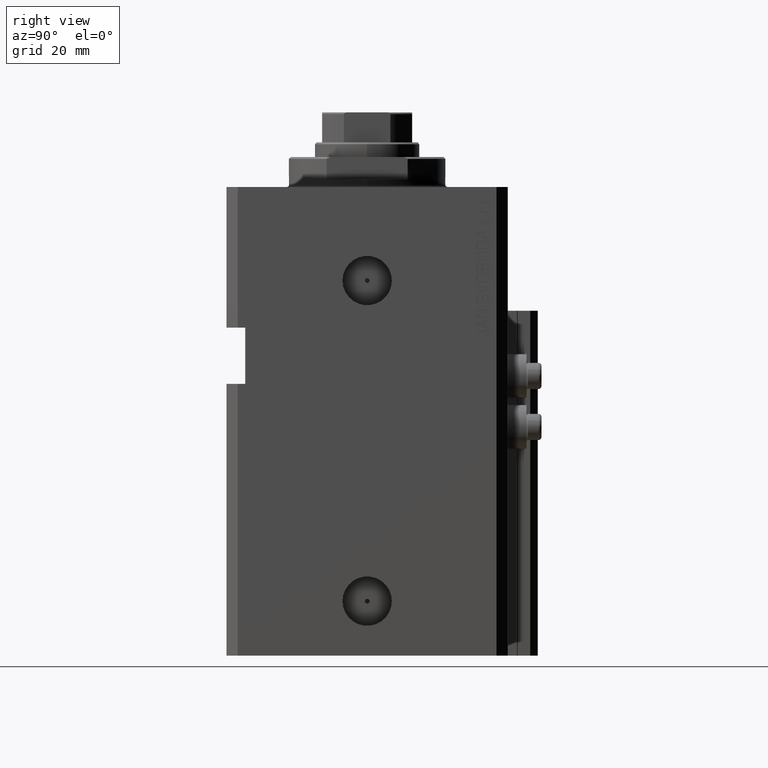
[diagram: clean part render]
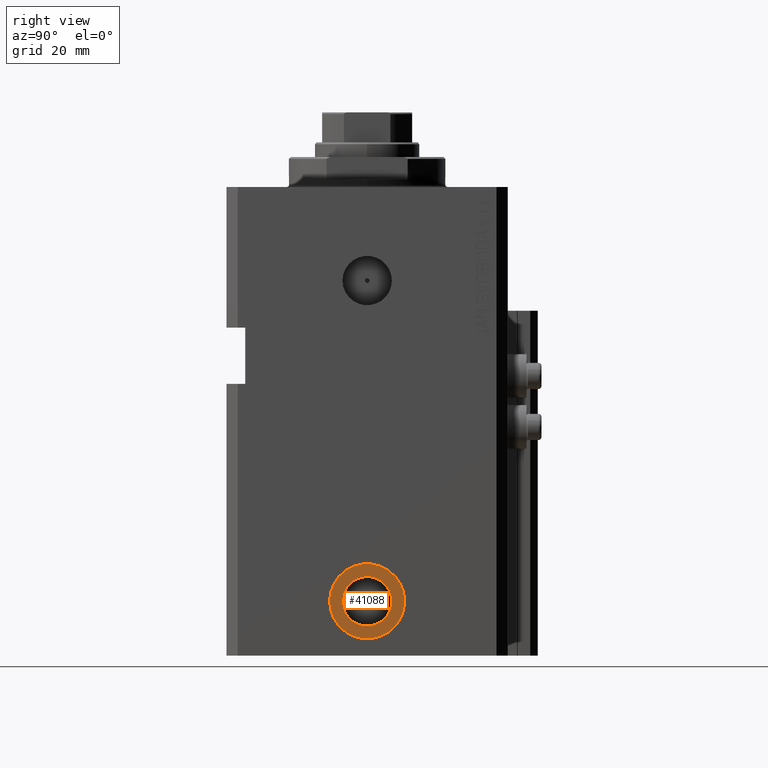
[diagram: same view with one face highlighted and labeled with its STEP entity id]
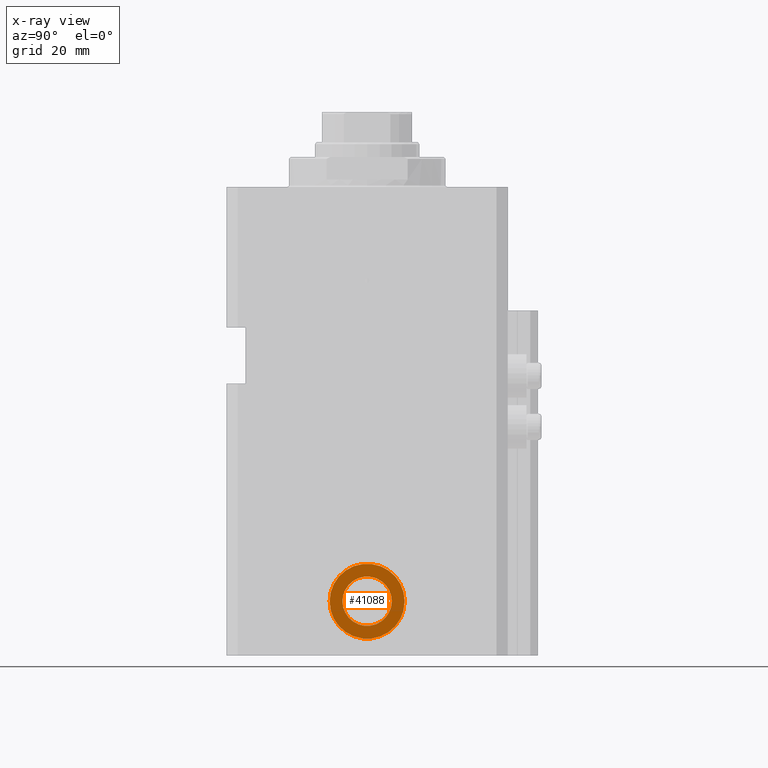
[diagram: x-ray of the same camera — body ghosted, the highlighted face saturated]
A machine part, right view. The second image highlights one B-rep face of the part: STEP entity #41088.
The next image is the same camera in x-ray: the body ghosted, the highlighted face saturated — about 0% of this face is hidden behind the body in this view.
In plain terms, the highlighted planar face has unit normal (1, -0, 0).
Its self-contained STEP definition (entity closure, byte-faithful):
#991 = CARTESIAN_POINT ( 'NONE',  ( 49.90000000000034674, 6.579999999999617266, -110.5000000000000000 ) ) ;
#1330 = ORIENTED_EDGE ( 'NONE', *, *, #39675, .F. ) ;
#1749 = CARTESIAN_POINT ( 'NONE',  ( 49.90000000000025437, -3.707512124632281298E-13, -110.5000000000000000 ) ) ;
#2433 = CARTESIAN_POINT ( 'NONE',  ( 49.90000000000025437, -3.707512124632281298E-13, -110.5000000000000000 ) ) ;
#3461 = EDGE_CURVE ( 'NONE', #6206, #44899, #20139, .T. ) ;
#4501 = ORIENTED_EDGE ( 'NONE', *, *, #26558, .T. ) ;
#6206 = VERTEX_POINT ( 'NONE', #991 ) ;
#7014 = EDGE_LOOP ( 'NONE', ( #44549, #1330 ) ) ;
#7814 = AXIS2_PLACEMENT_3D ( 'NONE', #45252, #26011, #30388 ) ;
#10689 = EDGE_CURVE ( 'NONE', #16764, #34056, #43623, .T. ) ;
#11654 = EDGE_LOOP ( 'NONE', ( #12789, #4501 ) ) ;
#11685 = DIRECTION ( 'NONE',  ( 1.000000000000000000, -1.334402673828349134E-14, 0.000000000000000000 ) ) ;
#12605 = DIRECTION ( 'NONE',  ( 1.000000000000000000, -1.334402673828349134E-14, 0.000000000000000000 ) ) ;
#12789 = ORIENTED_EDGE ( 'NONE', *, *, #10689, .T. ) ;
#13407 = PLANE ( 'NONE',  #34399 ) ;
#13645 = DIRECTION ( 'NONE',  ( 1.334402673828349134E-14, 1.000000000000000000, 0.000000000000000000 ) ) ;
#15327 = CARTESIAN_POINT ( 'NONE',  ( 49.90000000000016911, -6.580000000000357119, -110.5000000000000000 ) ) ;
#16271 = DIRECTION ( 'NONE',  ( 1.370906090437600963E-14, 1.000000000000000000, 0.000000000000000000 ) ) ;
#16764 = VERTEX_POINT ( 'NONE', #44388 ) ;
#17114 = DIRECTION ( 'NONE',  ( 1.318389841742374023E-14, 1.000000000000000000, 0.000000000000000000 ) ) ;
#18082 = AXIS2_PLACEMENT_3D ( 'NONE', #36800, #11685, #40132 ) ;
#20139 = CIRCLE ( 'NONE', #47379, 6.579999999999987637 ) ;
#23078 = CARTESIAN_POINT ( 'NONE',  ( 49.90000000000025437, -3.707512124632281298E-13, -110.5000000000000000 ) ) ;
#24715 = AXIS2_PLACEMENT_3D ( 'NONE', #1749, #31725, #17114 ) ;
#26011 = DIRECTION ( 'NONE',  ( 1.000000000000000000, -1.334402673828349134E-14, 0.000000000000000000 ) ) ;
#26558 = EDGE_CURVE ( 'NONE', #34056, #16764, #45711, .T. ) ;
#27765 = FACE_BOUND ( 'NONE', #7014, .T. ) ;
#28900 = CARTESIAN_POINT ( 'NONE',  ( 49.90000000000012648, -10.00000000000036593, -110.5000000000000000 ) ) ;
#30388 = DIRECTION ( 'NONE',  ( 1.318389841742374023E-14, 1.000000000000000000, 0.000000000000000000 ) ) ;
#31725 = DIRECTION ( 'NONE',  ( 1.000000000000000000, -1.334402673828349134E-14, 0.000000000000000000 ) ) ;
#32643 = DIRECTION ( 'NONE',  ( 1.000000000000000000, -1.334402673828349134E-14, 0.000000000000000000 ) ) ;
#34056 = VERTEX_POINT ( 'NONE', #28900 ) ;
#34399 = AXIS2_PLACEMENT_3D ( 'NONE', #2433, #32643, #13645 ) ;
#36800 = CARTESIAN_POINT ( 'NONE',  ( 49.90000000000025437, -3.707512124632281298E-13, -110.5000000000000000 ) ) ;
#39049 = CIRCLE ( 'NONE', #18082, 6.579999999999987637 ) ;
#39675 = EDGE_CURVE ( 'NONE', #44899, #6206, #39049, .T. ) ;
#40132 = DIRECTION ( 'NONE',  ( 1.370906090437600963E-14, 1.000000000000000000, 0.000000000000000000 ) ) ;
#41088 = ADVANCED_FACE ( 'NONE', ( #27765, #46534 ), #13407, .T. ) ;
#43623 = CIRCLE ( 'NONE', #7814, 9.999999999999994671 ) ;
#44388 = CARTESIAN_POINT ( 'NONE',  ( 49.90000000000038938, 9.999999999999623412, -110.5000000000000000 ) ) ;
#44549 = ORIENTED_EDGE ( 'NONE', *, *, #3461, .F. ) ;
#44899 = VERTEX_POINT ( 'NONE', #15327 ) ;
#45252 = CARTESIAN_POINT ( 'NONE',  ( 49.90000000000025437, -3.707512124632281298E-13, -110.5000000000000000 ) ) ;
#45711 = CIRCLE ( 'NONE', #24715, 9.999999999999994671 ) ;
#46534 = FACE_OUTER_BOUND ( 'NONE', #11654, .T. ) ;
#47379 = AXIS2_PLACEMENT_3D ( 'NONE', #23078, #12605, #16271 ) ;